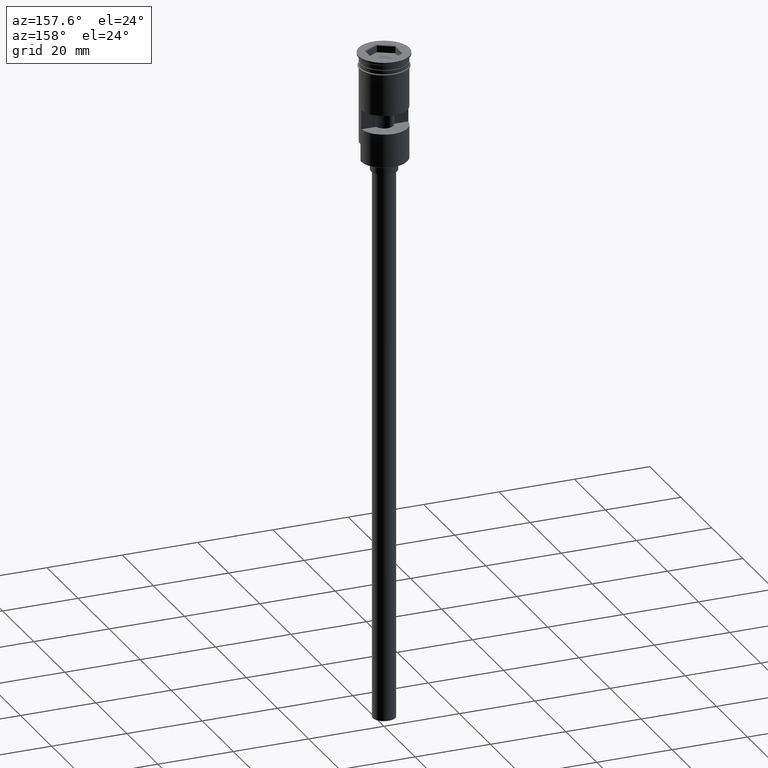
[diagram: clean part render]
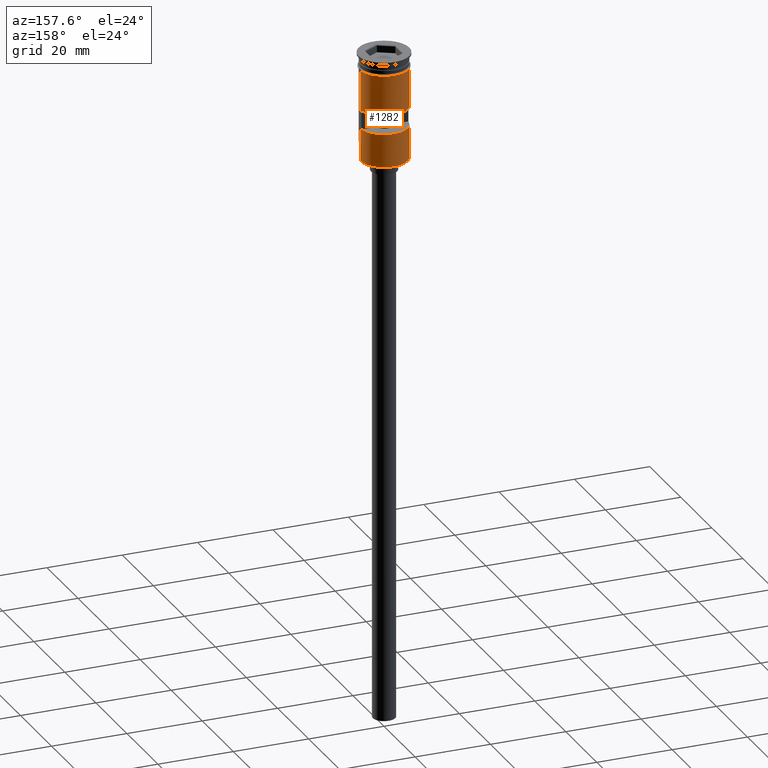
[diagram: same view with one face highlighted and labeled with its STEP entity id]
A machine part, auxiliary view. The second image highlights one B-rep face of the part: STEP entity #1282.
In plain terms, the highlighted cylindrical surface (edge-blend (fillet) strip) has radius 6.25 mm, axis along (-0, -0, 1).
Its self-contained STEP definition (entity closure, byte-faithful):
#17 = VECTOR ( 'NONE', #202, 1000.000000000000000 ) ;
#22 = CARTESIAN_POINT ( 'NONE',  ( -6.221133337262590324, 0.5999999999999999778, -19.50000000000000355 ) ) ;
#32 = VERTEX_POINT ( 'NONE', #631 ) ;
#40 = CARTESIAN_POINT ( 'NONE',  ( 0.000000000000000000, 0.000000000000000000, -14.49999999999999822 ) ) ;
#55 = VERTEX_POINT ( 'NONE', #855 ) ;
#72 = AXIS2_PLACEMENT_3D ( 'NONE', #1583, #964, #467 ) ;
#76 = VECTOR ( 'NONE', #108, 1000.000000000000000 ) ;
#100 = EDGE_CURVE ( 'NONE', #589, #552, #1134, .T. ) ;
#108 = DIRECTION ( 'NONE',  ( 0.000000000000000000, 0.000000000000000000, -1.000000000000000000 ) ) ;
#117 = CARTESIAN_POINT ( 'NONE',  ( -6.249999999999995559, 0.000000000000000000, -23.80000000000000782 ) ) ;
#142 = ORIENTED_EDGE ( 'NONE', *, *, #687, .F. ) ;
#174 = EDGE_LOOP ( 'NONE', ( #912, #1011, #1480, #888, #1526, #299 ) ) ;
#179 = ORIENTED_EDGE ( 'NONE', *, *, #445, .F. ) ;
#182 = EDGE_CURVE ( 'NONE', #1200, #552, #840, .T. ) ;
#195 = DIRECTION ( 'NONE',  ( 0.000000000000000000, 0.000000000000000000, 1.000000000000000000 ) ) ;
#202 = DIRECTION ( 'NONE',  ( -0.000000000000000000, -0.000000000000000000, 1.000000000000000000 ) ) ;
#237 = VECTOR ( 'NONE', #270, 1000.000000000000000 ) ;
#243 = VECTOR ( 'NONE', #1193, 1000.000000000000000 ) ;
#270 = DIRECTION ( 'NONE',  ( -0.000000000000000000, -0.000000000000000000, 1.000000000000000000 ) ) ;
#299 = ORIENTED_EDGE ( 'NONE', *, *, #1293, .T. ) ;
#319 = CYLINDRICAL_SURFACE ( 'NONE', #1101, 6.249999999999997335 ) ;
#342 = EDGE_CURVE ( 'NONE', #1467, #55, #986, .T. ) ;
#421 = LINE ( 'NONE', #1049, #243 ) ;
#423 = VERTEX_POINT ( 'NONE', #824 ) ;
#431 = VECTOR ( 'NONE', #573, 1000.000000000000000 ) ;
#445 = EDGE_CURVE ( 'NONE', #423, #932, #454, .T. ) ;
#454 = CIRCLE ( 'NONE', #1595, 6.249999999999997335 ) ;
#458 = CARTESIAN_POINT ( 'NONE',  ( 6.221133337262590324, 0.5999999999999999778, 0.000000000000000000 ) ) ;
#467 = DIRECTION ( 'NONE',  ( 1.000000000000000000, 0.000000000000000000, 0.000000000000000000 ) ) ;
#489 = VERTEX_POINT ( 'NONE', #1494 ) ;
#513 = CARTESIAN_POINT ( 'NONE',  ( -6.249999999999995559, 0.000000000000000000, -28.29999999999999716 ) ) ;
#535 = VECTOR ( 'NONE', #1410, 1000.000000000000000 ) ;
#552 = VERTEX_POINT ( 'NONE', #887 ) ;
#563 = LINE ( 'NONE', #1036, #535 ) ;
#573 = DIRECTION ( 'NONE',  ( -0.000000000000000000, -0.000000000000000000, 1.000000000000000000 ) ) ;
#589 = VERTEX_POINT ( 'NONE', #117 ) ;
#593 = CARTESIAN_POINT ( 'NONE',  ( 0.000000000000000000, 0.000000000000000000, -28.29999999999999716 ) ) ;
#619 = EDGE_CURVE ( 'NONE', #55, #1200, #563, .T. ) ;
#631 = CARTESIAN_POINT ( 'NONE',  ( 6.221133337262590324, 0.5999999999999999778, -14.49999999999999822 ) ) ;
#687 = EDGE_CURVE ( 'NONE', #489, #32, #1206, .T. ) ;
#689 = ORIENTED_EDGE ( 'NONE', *, *, #1547, .F. ) ;
#697 = DIRECTION ( 'NONE',  ( -0.000000000000000000, -0.000000000000000000, 1.000000000000000000 ) ) ;
#714 = CARTESIAN_POINT ( 'NONE',  ( 0.000000000000000000, 0.000000000000000000, 0.000000000000000000 ) ) ;
#760 = AXIS2_PLACEMENT_3D ( 'NONE', #40, #1432, #779 ) ;
#768 = EDGE_LOOP ( 'NONE', ( #1250, #142, #689, #179 ) ) ;
#779 = DIRECTION ( 'NONE',  ( 0.000000000000000000, -1.000000000000000000, 2.775557561562892337E-16 ) ) ;
#824 = CARTESIAN_POINT ( 'NONE',  ( 6.221133337262590324, 0.5999999999999999778, -19.50000000000000355 ) ) ;
#840 = CIRCLE ( 'NONE', #72, 6.250000000000000000 ) ;
#855 = CARTESIAN_POINT ( 'NONE',  ( 6.249999999999997335, 7.654042494670953662E-16, -23.80000000000000782 ) ) ;
#871 = DIRECTION ( 'NONE',  ( -1.000000000000000000, 0.000000000000000000, 0.000000000000000000 ) ) ;
#884 = EDGE_CURVE ( 'NONE', #1374, #589, #957, .T. ) ;
#887 = CARTESIAN_POINT ( 'NONE',  ( -6.250000000000000000, 7.654042494670958593E-16, -3.799999999999998490 ) ) ;
#888 = ORIENTED_EDGE ( 'NONE', *, *, #619, .F. ) ;
#912 = ORIENTED_EDGE ( 'NONE', *, *, #884, .T. ) ;
#932 = VERTEX_POINT ( 'NONE', #22 ) ;
#957 = LINE ( 'NONE', #1339, #17 ) ;
#960 = CARTESIAN_POINT ( 'NONE',  ( 6.249999999999995559, 7.654042494670950704E-16, -28.50000000000000000 ) ) ;
#964 = DIRECTION ( 'NONE',  ( -0.000000000000000000, -0.000000000000000000, 1.000000000000000000 ) ) ;
#986 = LINE ( 'NONE', #960, #431 ) ;
#1011 = ORIENTED_EDGE ( 'NONE', *, *, #100, .T. ) ;
#1036 = CARTESIAN_POINT ( 'NONE',  ( 6.249999999999997335, 0.000000000000000000, 0.000000000000000000 ) ) ;
#1049 = CARTESIAN_POINT ( 'NONE',  ( -6.221133337262590324, 0.5999999999999999778, 0.000000000000000000 ) ) ;
#1081 = DIRECTION ( 'NONE',  ( -1.000000000000000000, 0.000000000000000000, 0.000000000000000000 ) ) ;
#1101 = AXIS2_PLACEMENT_3D ( 'NONE', #714, #697, #1570 ) ;
#1105 = CARTESIAN_POINT ( 'NONE',  ( -6.249999999999997335, 7.654042494670954648E-16, 0.000000000000000000 ) ) ;
#1134 = LINE ( 'NONE', #1105, #237 ) ;
#1137 = CARTESIAN_POINT ( 'NONE',  ( 6.249999999999995559, 7.654042494670950704E-16, -28.29999999999999716 ) ) ;
#1189 = DIRECTION ( 'NONE',  ( 0.000000000000000000, 0.000000000000000000, 1.000000000000000000 ) ) ;
#1193 = DIRECTION ( 'NONE',  ( -0.000000000000000000, -0.000000000000000000, 1.000000000000000000 ) ) ;
#1200 = VERTEX_POINT ( 'NONE', #1391 ) ;
#1206 = CIRCLE ( 'NONE', #760, 6.249999999999997335 ) ;
#1210 = FACE_OUTER_BOUND ( 'NONE', #174, .T. ) ;
#1250 = ORIENTED_EDGE ( 'NONE', *, *, #1326, .F. ) ;
#1282 = ADVANCED_FACE ( 'NONE', ( #1434, #1210 ), #319, .T. ) ;
#1286 = AXIS2_PLACEMENT_3D ( 'NONE', #593, #1189, #1081 ) ;
#1293 = EDGE_CURVE ( 'NONE', #1467, #1374, #1316, .T. ) ;
#1316 = CIRCLE ( 'NONE', #1286, 6.249999999999997335 ) ;
#1326 = EDGE_CURVE ( 'NONE', #32, #423, #1460, .T. ) ;
#1339 = CARTESIAN_POINT ( 'NONE',  ( -6.249999999999995559, 0.000000000000000000, -28.50000000000000000 ) ) ;
#1374 = VERTEX_POINT ( 'NONE', #513 ) ;
#1391 = CARTESIAN_POINT ( 'NONE',  ( 6.250000000000000000, 0.000000000000000000, -3.799999999999998490 ) ) ;
#1410 = DIRECTION ( 'NONE',  ( -0.000000000000000000, -0.000000000000000000, 1.000000000000000000 ) ) ;
#1432 = DIRECTION ( 'NONE',  ( -0.000000000000000000, -3.070307037127093647E-16, -1.000000000000000000 ) ) ;
#1434 = FACE_BOUND ( 'NONE', #768, .T. ) ;
#1460 = LINE ( 'NONE', #458, #76 ) ;
#1467 = VERTEX_POINT ( 'NONE', #1137 ) ;
#1480 = ORIENTED_EDGE ( 'NONE', *, *, #182, .F. ) ;
#1494 = CARTESIAN_POINT ( 'NONE',  ( -6.221133337262590324, 0.5999999999999999778, -14.49999999999999822 ) ) ;
#1526 = ORIENTED_EDGE ( 'NONE', *, *, #342, .F. ) ;
#1547 = EDGE_CURVE ( 'NONE', #932, #489, #421, .T. ) ;
#1570 = DIRECTION ( 'NONE',  ( 1.000000000000000000, 0.000000000000000000, 0.000000000000000000 ) ) ;
#1577 = CARTESIAN_POINT ( 'NONE',  ( 0.000000000000000000, 0.000000000000000000, -19.50000000000000355 ) ) ;
#1583 = CARTESIAN_POINT ( 'NONE',  ( 0.000000000000000000, 0.000000000000000000, -3.799999999999998490 ) ) ;
#1595 = AXIS2_PLACEMENT_3D ( 'NONE', #1577, #195, #871 ) ;